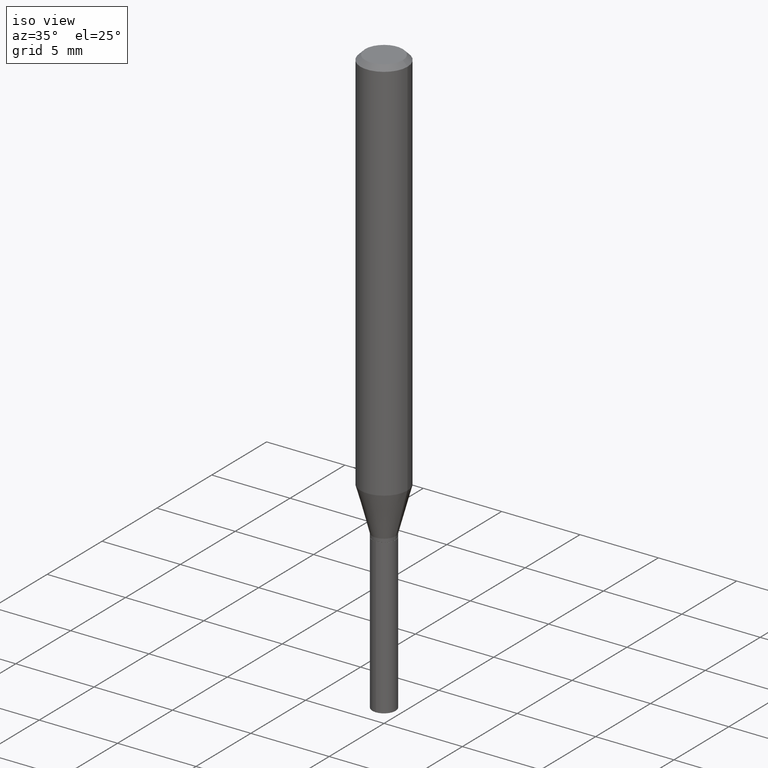
[diagram: clean part render]
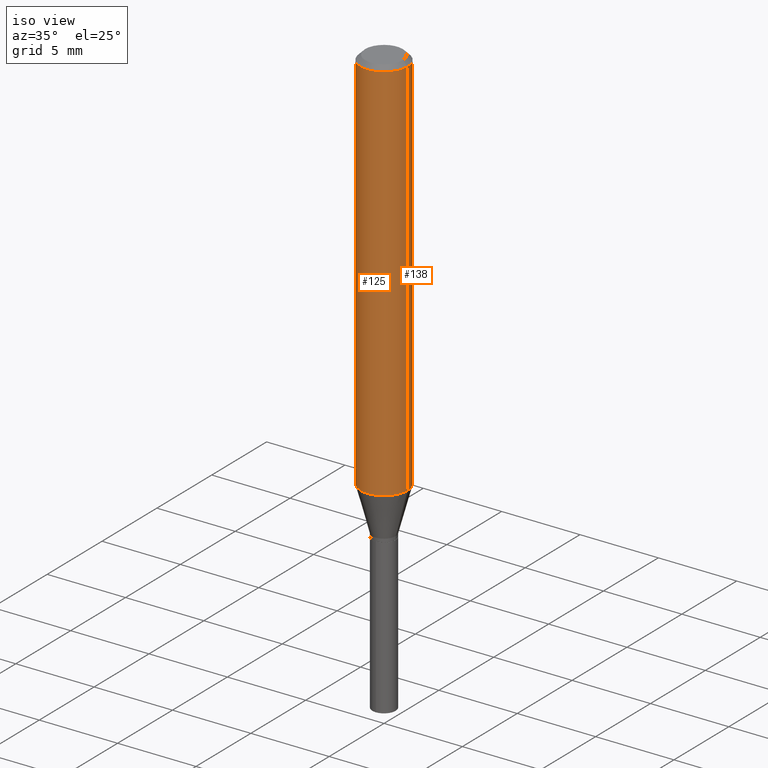
[diagram: same view with one multi-face feature highlighted, each face labeled with its STEP entity id]
A machine part, iso view. The highlighted faces form ONE feature: a constant-radius fillet chain: 2 tangent blend faces with common blend radius 1.4999 mm. The faces share edges in the B-rep.
Their STEP definitions:
[1] entity #138 (Cylinder):
#2 = CIRCLE ( 'NONE', #338, 0.05904999999999999832 ) ;
#7 = DIRECTION ( 'NONE',  ( -2.445468806185136597E-29, 3.491481338843145583E-15, 1.000000000000000000 ) ) ;
#22 = VECTOR ( 'NONE', #204, 39.37007874015748143 ) ;
#32 = CARTESIAN_POINT ( 'NONE',  ( -0.05905000000000011628, -2.981866418317333587E-15, -0.9742116808536903649 ) ) ;
#44 = LINE ( 'NONE', #457, #170 ) ;
#51 = DIRECTION ( 'NONE',  ( 1.000000000000000000, -6.982962677686266711E-15, 4.876176775795935793E-29 ) ) ;
#56 = VERTEX_POINT ( 'NONE', #370 ) ;
#74 = AXIS2_PLACEMENT_3D ( 'NONE', #167, #359, #51 ) ;
#123 = VERTEX_POINT ( 'NONE', #250 ) ;
#134 = EDGE_LOOP ( 'NONE', ( #461, #345, #483, #398 ) ) ;
#138 = ADVANCED_FACE ( 'NONE', ( #475 ), #439, .T. ) ;
#141 = AXIS2_PLACEMENT_3D ( 'NONE', #341, #344, #196 ) ;
#147 = EDGE_CURVE ( 'NONE', #123, #331, #473, .T. ) ;
#167 = CARTESIAN_POINT ( 'NONE',  ( 0.000000000000000000, 0.000000000000000000, 0.000000000000000000 ) ) ;
#170 = VECTOR ( 'NONE', #308, 39.37007874015748143 ) ;
#195 = EDGE_CURVE ( 'NONE', #423, #56, #44, .T. ) ;
#196 = DIRECTION ( 'NONE',  ( 1.000000000000000000, -6.982962677686266711E-15, 0.000000000000000000 ) ) ;
#204 = DIRECTION ( 'NONE',  ( -2.445468806185136877E-29, 3.491481338843145188E-15, 1.000000000000000000 ) ) ;
#223 = EDGE_CURVE ( 'NONE', #123, #423, #462, .T. ) ;
#236 = EDGE_CURVE ( 'NONE', #331, #56, #2, .T. ) ;
#245 = CARTESIAN_POINT ( 'NONE',  ( 0.05905000000000006077, -4.123439461173744764E-16, 2.879382386107503023E-30 ) ) ;
#250 = CARTESIAN_POINT ( 'NONE',  ( 0.05905000000000011628, -3.813785849901049183E-15, -0.9742116808536903649 ) ) ;
#308 = DIRECTION ( 'NONE',  ( -2.445468806185136877E-29, 3.491481338843145188E-15, 1.000000000000000000 ) ) ;
#316 = CARTESIAN_POINT ( 'NONE',  ( 0.05904999999999999832, -4.535783407291118600E-16, -0.01181000000000006871 ) ) ;
#331 = VERTEX_POINT ( 'NONE', #316 ) ;
#338 = AXIS2_PLACEMENT_3D ( 'NONE', #417, #7, #381 ) ;
#341 = CARTESIAN_POINT ( 'NONE',  ( 2.382404276148889621E-29, -3.401441903783673869E-15, -0.9742116808536903649 ) ) ;
#344 = DIRECTION ( 'NONE',  ( -2.445468806185136597E-29, 3.491481338843145583E-15, 1.000000000000000000 ) ) ;
#345 = ORIENTED_EDGE ( 'NONE', *, *, #195, .T. ) ;
#359 = DIRECTION ( 'NONE',  ( -2.445468806185136597E-29, 3.491481338843145583E-15, 1.000000000000000000 ) ) ;
#370 = CARTESIAN_POINT ( 'NONE',  ( -0.05904999999999999832, -1.301762663731365517E-15, -0.01181000000000006871 ) ) ;
#381 = DIRECTION ( 'NONE',  ( 1.000000000000000000, -6.982962677686266711E-15, 0.000000000000000000 ) ) ;
#398 = ORIENTED_EDGE ( 'NONE', *, *, #147, .F. ) ;
#417 = CARTESIAN_POINT ( 'NONE',  ( 2.888098660104663328E-31, -4.123439461173779030E-17, -0.01181000000000006871 ) ) ;
#423 = VERTEX_POINT ( 'NONE', #32 ) ;
#439 = CYLINDRICAL_SURFACE ( 'NONE', #74, 0.05905000000000006077 ) ;
#457 = CARTESIAN_POINT ( 'NONE',  ( -0.05905000000000006077, 4.195754854663395916E-16, -2.904631170795524694E-30 ) ) ;
#461 = ORIENTED_EDGE ( 'NONE', *, *, #223, .T. ) ;
#462 = CIRCLE ( 'NONE', #141, 0.05905000000000011628 ) ;
#473 = LINE ( 'NONE', #245, #22 ) ;
#475 = FACE_OUTER_BOUND ( 'NONE', #134, .T. ) ;
#483 = ORIENTED_EDGE ( 'NONE', *, *, #236, .F. ) ;
[2] entity #125 (Cylinder):
#17 = CIRCLE ( 'NONE', #354, 0.05904999999999999832 ) ;
#22 = VECTOR ( 'NONE', #204, 39.37007874015748143 ) ;
#28 = ORIENTED_EDGE ( 'NONE', *, *, #277, .T. ) ;
#32 = CARTESIAN_POINT ( 'NONE',  ( -0.05905000000000011628, -2.981866418317333587E-15, -0.9742116808536903649 ) ) ;
#36 = CIRCLE ( 'NONE', #228, 0.05905000000000011628 ) ;
#44 = LINE ( 'NONE', #457, #170 ) ;
#56 = VERTEX_POINT ( 'NONE', #370 ) ;
#85 = CARTESIAN_POINT ( 'NONE',  ( 2.382404276148889621E-29, -3.401441903783673869E-15, -0.9742116808536903649 ) ) ;
#98 = CYLINDRICAL_SURFACE ( 'NONE', #328, 0.05905000000000006077 ) ;
#113 = DIRECTION ( 'NONE',  ( -2.445468806185136597E-29, 3.491481338843145583E-15, 1.000000000000000000 ) ) ;
#123 = VERTEX_POINT ( 'NONE', #250 ) ;
#125 = ADVANCED_FACE ( 'NONE', ( #485 ), #98, .T. ) ;
#147 = EDGE_CURVE ( 'NONE', #123, #331, #473, .T. ) ;
#170 = VECTOR ( 'NONE', #308, 39.37007874015748143 ) ;
#195 = EDGE_CURVE ( 'NONE', #423, #56, #44, .T. ) ;
#204 = DIRECTION ( 'NONE',  ( -2.445468806185136877E-29, 3.491481338843145188E-15, 1.000000000000000000 ) ) ;
#218 = CARTESIAN_POINT ( 'NONE',  ( 2.888098660104663328E-31, -4.123439461173779030E-17, -0.01181000000000006871 ) ) ;
#226 = DIRECTION ( 'NONE',  ( 1.000000000000000000, -6.982962677686266711E-15, 4.876176775795935793E-29 ) ) ;
#228 = AXIS2_PLACEMENT_3D ( 'NONE', #85, #279, #433 ) ;
#230 = EDGE_LOOP ( 'NONE', ( #374, #28, #322, #268 ) ) ;
#245 = CARTESIAN_POINT ( 'NONE',  ( 0.05905000000000006077, -4.123439461173744764E-16, 2.879382386107503023E-30 ) ) ;
#250 = CARTESIAN_POINT ( 'NONE',  ( 0.05905000000000011628, -3.813785849901049183E-15, -0.9742116808536903649 ) ) ;
#255 = CARTESIAN_POINT ( 'NONE',  ( 0.000000000000000000, 0.000000000000000000, 0.000000000000000000 ) ) ;
#268 = ORIENTED_EDGE ( 'NONE', *, *, #458, .F. ) ;
#277 = EDGE_CURVE ( 'NONE', #423, #123, #36, .T. ) ;
#279 = DIRECTION ( 'NONE',  ( -2.445468806185136597E-29, 3.491481338843145583E-15, 1.000000000000000000 ) ) ;
#291 = DIRECTION ( 'NONE',  ( 1.000000000000000000, -6.982962677686266711E-15, 0.000000000000000000 ) ) ;
#308 = DIRECTION ( 'NONE',  ( -2.445468806185136877E-29, 3.491481338843145188E-15, 1.000000000000000000 ) ) ;
#316 = CARTESIAN_POINT ( 'NONE',  ( 0.05904999999999999832, -4.535783407291118600E-16, -0.01181000000000006871 ) ) ;
#322 = ORIENTED_EDGE ( 'NONE', *, *, #147, .T. ) ;
#328 = AXIS2_PLACEMENT_3D ( 'NONE', #255, #113, #226 ) ;
#331 = VERTEX_POINT ( 'NONE', #316 ) ;
#354 = AXIS2_PLACEMENT_3D ( 'NONE', #218, #411, #291 ) ;
#370 = CARTESIAN_POINT ( 'NONE',  ( -0.05904999999999999832, -1.301762663731365517E-15, -0.01181000000000006871 ) ) ;
#374 = ORIENTED_EDGE ( 'NONE', *, *, #195, .F. ) ;
#411 = DIRECTION ( 'NONE',  ( -2.445468806185136597E-29, 3.491481338843145583E-15, 1.000000000000000000 ) ) ;
#423 = VERTEX_POINT ( 'NONE', #32 ) ;
#433 = DIRECTION ( 'NONE',  ( 1.000000000000000000, -6.982962677686266711E-15, 0.000000000000000000 ) ) ;
#457 = CARTESIAN_POINT ( 'NONE',  ( -0.05905000000000006077, 4.195754854663395916E-16, -2.904631170795524694E-30 ) ) ;
#458 = EDGE_CURVE ( 'NONE', #56, #331, #17, .T. ) ;
#473 = LINE ( 'NONE', #245, #22 ) ;
#485 = FACE_OUTER_BOUND ( 'NONE', #230, .T. ) ;